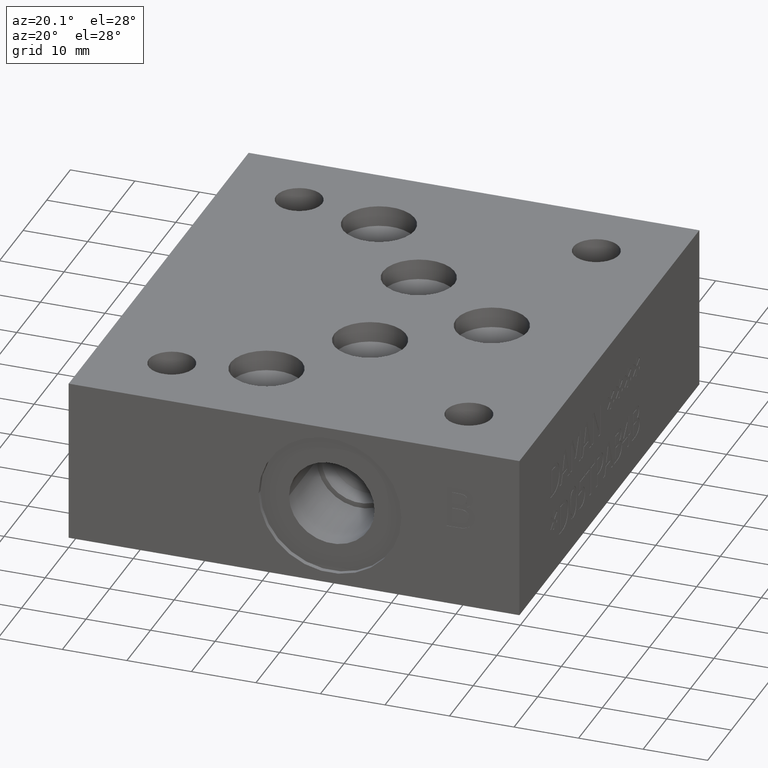
[diagram: clean part render]
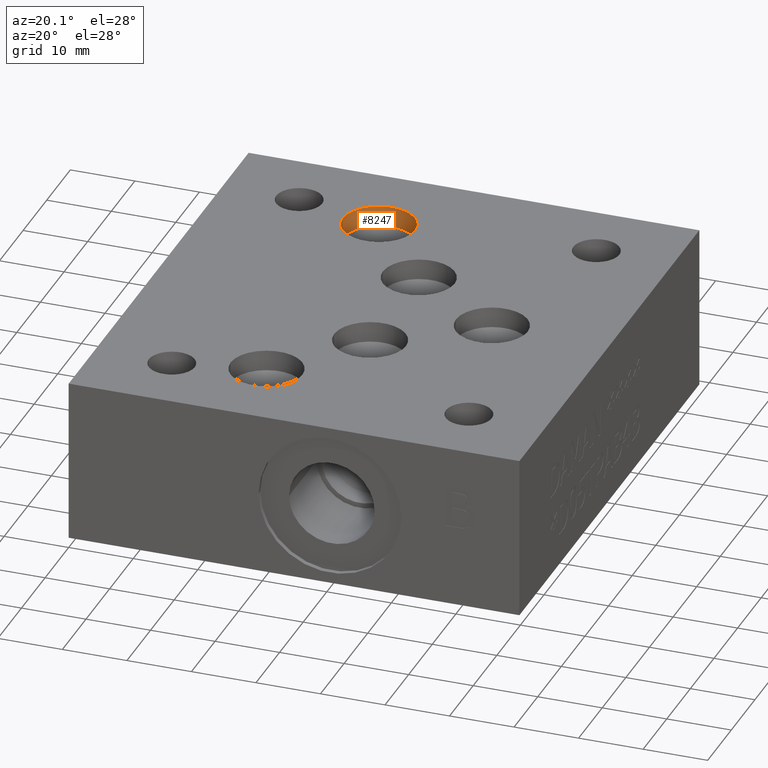
[diagram: same view with one face highlighted and labeled with its STEP entity id]
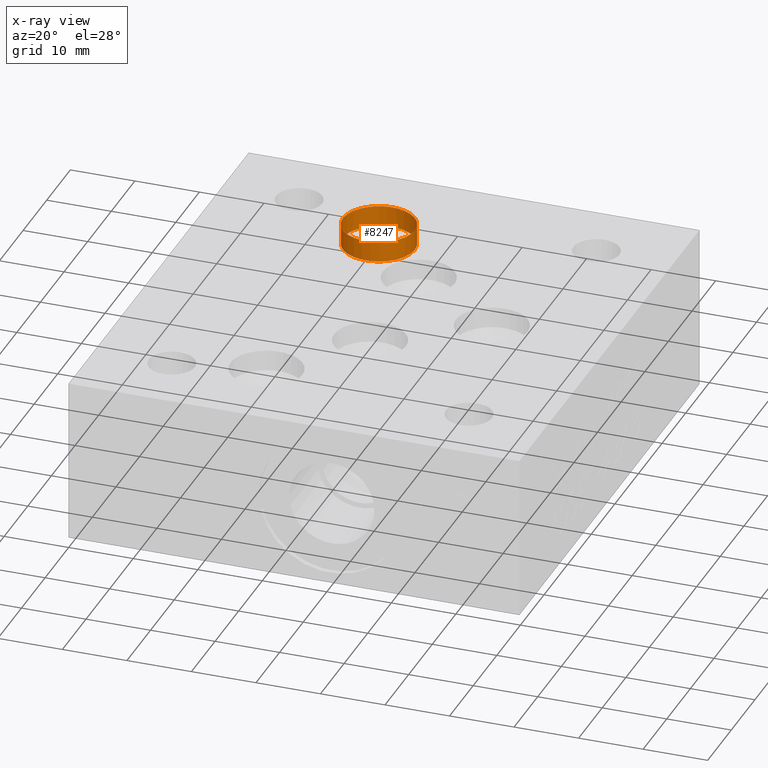
[diagram: x-ray of the same camera — body ghosted, the highlighted face saturated]
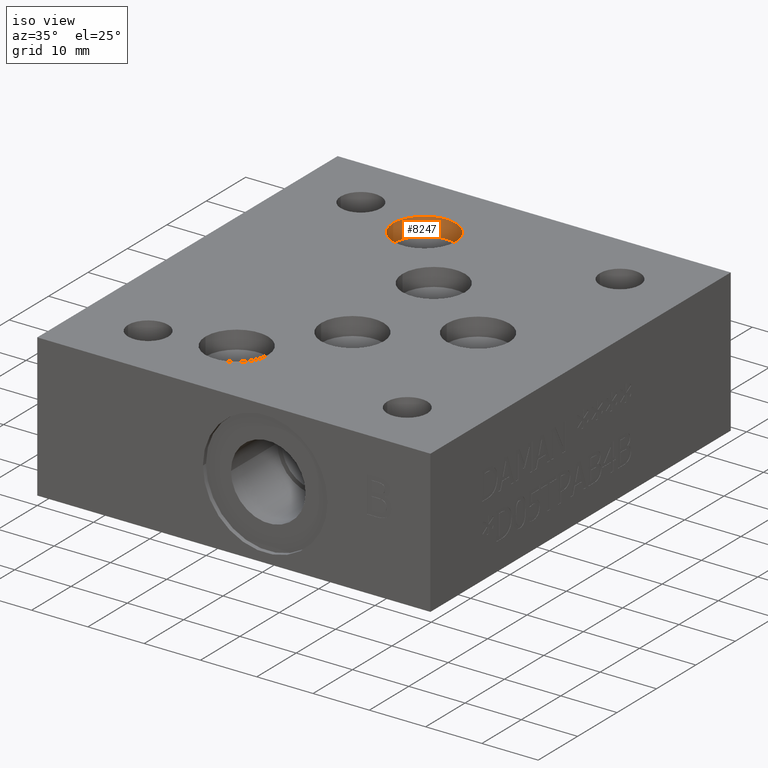
[diagram: same view with one face highlighted and labeled with its STEP entity id]
A machine part, auxiliary view. The second image highlights one B-rep face of the part: STEP entity #8247.
The next image is the same camera in x-ray: the body ghosted, the highlighted face saturated — about 0% of this face is hidden behind the body in this view.
A second angle (iso view) of the same face is appended — the face is thin or edge-on in the first view.
In plain terms, the highlighted cylindrical surface (bore or boss wall) has radius 5.5626 mm, axis along (0, 0, 1).
Its self-contained STEP definition (entity closure, byte-faithful):
#44=CYLINDRICAL_SURFACE('',#8665,5.5626);
#127=CIRCLE('',#8664,5.5626);
#128=CIRCLE('',#8666,5.5626);
#902=FACE_OUTER_BOUND('',#1385,.T.);
#1385=EDGE_LOOP('',(#7352,#7353,#7354,#7355));
#2258=LINE('',#13880,#3118);
#3118=VECTOR('',#10326,5.5626);
#4047=VERTEX_POINT('',#13873);
#4049=VERTEX_POINT('',#13878);
#5157=EDGE_CURVE('',#4047,#4047,#127,.T.);
#5159=EDGE_CURVE('',#4049,#4049,#128,.T.);
#5160=EDGE_CURVE('',#4049,#4047,#2258,.T.);
#7352=ORIENTED_EDGE('',*,*,#5159,.F.);
#7353=ORIENTED_EDGE('',*,*,#5160,.T.);
#7354=ORIENTED_EDGE('',*,*,#5157,.F.);
#7355=ORIENTED_EDGE('',*,*,#5160,.F.);
#8247=ADVANCED_FACE('',(#902),#44,.F.);
#8664=AXIS2_PLACEMENT_3D('',#13874,#10319,#10320);
#8665=AXIS2_PLACEMENT_3D('',#13877,#10322,#10323);
#8666=AXIS2_PLACEMENT_3D('',#13879,#10324,#10325);
#10319=DIRECTION('center_axis',(0.,0.,1.));
#10320=DIRECTION('ref_axis',(1.,0.,0.));
#10322=DIRECTION('center_axis',(0.,0.,1.));
#10323=DIRECTION('ref_axis',(1.,0.,0.));
#10324=DIRECTION('center_axis',(0.,0.,-1.));
#10325=DIRECTION('ref_axis',(1.,0.,0.));
#10326=DIRECTION('',(0.,0.,-1.));
#13873=CARTESIAN_POINT('',(19.8628,61.9252,22.18843));
#13874=CARTESIAN_POINT('Origin',(25.4254,61.9252,22.18843));
#13877=CARTESIAN_POINT('Origin',(25.4254,61.9252,23.794215));
#13878=CARTESIAN_POINT('',(19.8628,61.9252,25.4));
#13879=CARTESIAN_POINT('Origin',(25.4254,61.9252,25.4));
#13880=CARTESIAN_POINT('',(19.8628,61.9252,23.794215));